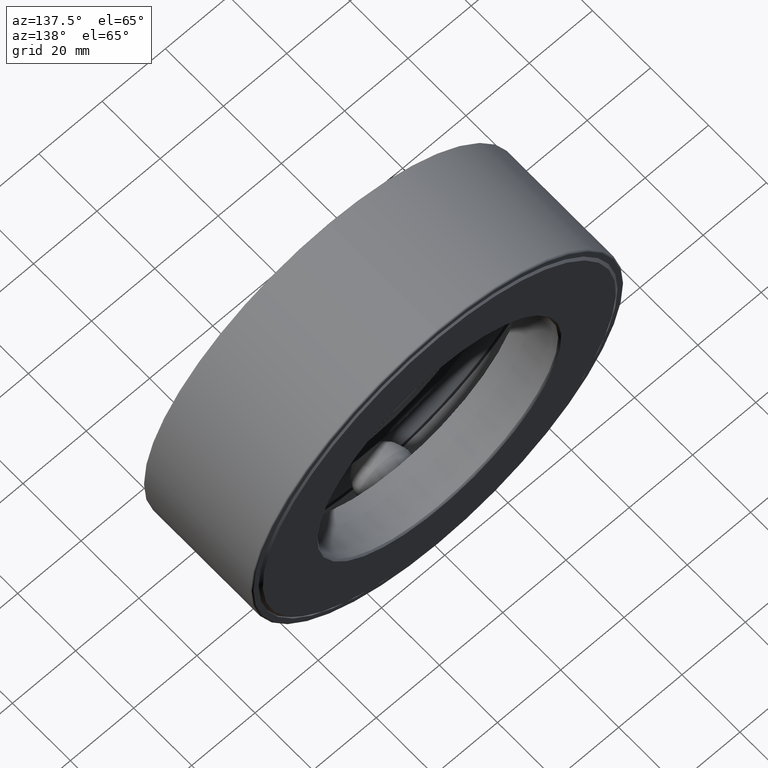
[diagram: clean part render]
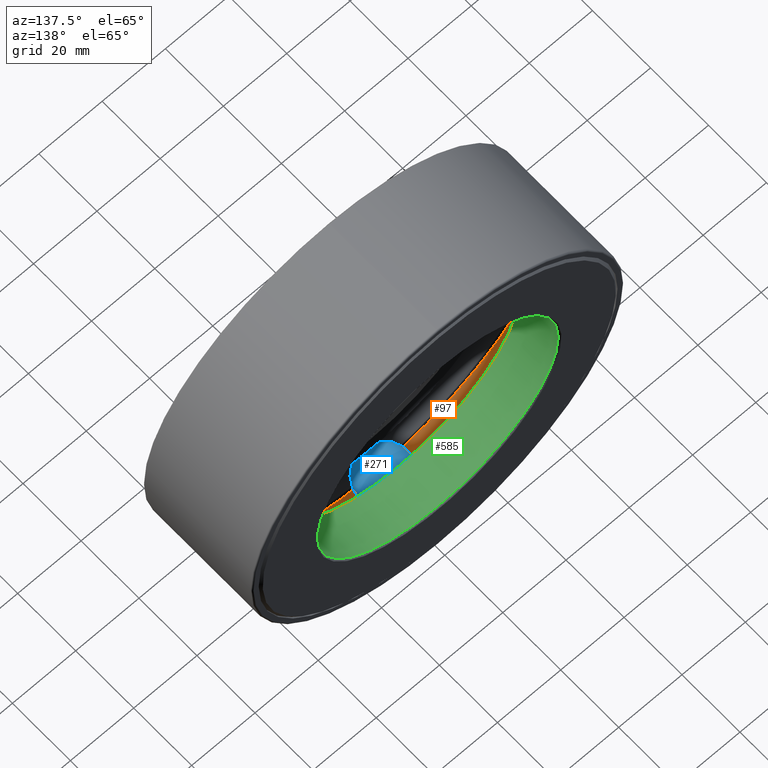
[diagram: same view with three faces highlighted in distinct colors, each labeled with its STEP entity id]
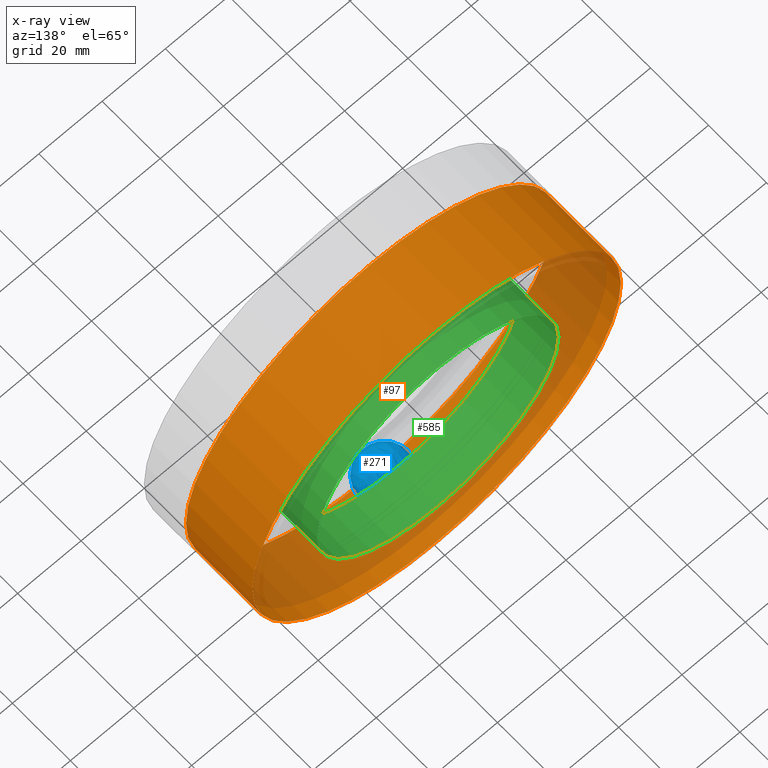
[diagram: x-ray of the same camera — body ghosted, the three highlighted faces saturated]
A machine part, auxiliary view with three faces highlighted in distinct colors.
The next image is the same camera in x-ray (body ghosted, the three faces saturated) — at least one of them is partly hidden behind the body in this view.
Their STEP definitions:

[orange] entity #97 — the highlighted cylindrical surface (bore or boss wall) has radius 58.2295 mm, axis along (-0, 1, -0).
#23 = DIRECTION ( 'NONE',  ( 0.0000000000000000000, 0.0000000000000000000, 1.000000000000000000 ) ) ;
#29 = EDGE_CURVE ( 'NONE', #243, #243, #111, .T. ) ;
#37 = ORIENTED_EDGE ( 'NONE', *, *, #29, .F. ) ;
#38 = AXIS2_PLACEMENT_3D ( 'NONE', #250, #335, #23 ) ;
#97 = ADVANCED_FACE ( 'NONE', ( #485, #544 ), #339, .F. ) ;
#111 = CIRCLE ( 'NONE', #38, 2.292499999999999500 ) ;
#134 = CARTESIAN_POINT ( 'NONE',  ( 0.0000000000000000000, 1.464999999999999900, 0.0000000000000000000 ) ) ;
#160 = CARTESIAN_POINT ( 'NONE',  ( 0.0000000000000000000, 0.0000000000000000000, 0.0000000000000000000 ) ) ;
#186 = DIRECTION ( 'NONE',  ( 0.0000000000000000000, 0.0000000000000000000, 1.000000000000000000 ) ) ;
#207 = EDGE_LOOP ( 'NONE', ( #37 ) ) ;
#223 = AXIS2_PLACEMENT_3D ( 'NONE', #134, #448, #186 ) ;
#241 = DIRECTION ( 'NONE',  ( 0.0000000000000000000, 0.0000000000000000000, 1.000000000000000000 ) ) ;
#243 = VERTEX_POINT ( 'NONE', #537 ) ;
#250 = CARTESIAN_POINT ( 'NONE',  ( 0.0000000000000000000, 0.5624999999999998900, 0.0000000000000000000 ) ) ;
#319 = AXIS2_PLACEMENT_3D ( 'NONE', #160, #566, #241 ) ;
#335 = DIRECTION ( 'NONE',  ( -0.0000000000000000000, 1.000000000000000000, -0.0000000000000000000 ) ) ;
#336 = EDGE_CURVE ( 'NONE', #381, #381, #345, .T. ) ;
#339 = CYLINDRICAL_SURFACE ( 'NONE', #319, 2.292499999999999500 ) ;
#345 = CIRCLE ( 'NONE', #223, 2.292499999999999500 ) ;
#381 = VERTEX_POINT ( 'NONE', #599 ) ;
#448 = DIRECTION ( 'NONE',  ( -0.0000000000000000000, 1.000000000000000000, -0.0000000000000000000 ) ) ;
#456 = EDGE_LOOP ( 'NONE', ( #552 ) ) ;
#485 = FACE_OUTER_BOUND ( 'NONE', #207, .T. ) ;
#537 = CARTESIAN_POINT ( 'NONE',  ( 0.0000000000000000000, 0.5624999999999998900, 2.292499999999999500 ) ) ;
#544 = FACE_OUTER_BOUND ( 'NONE', #456, .T. ) ;
#552 = ORIENTED_EDGE ( 'NONE', *, *, #336, .T. ) ;
#566 = DIRECTION ( 'NONE',  ( -0.0000000000000000000, 1.000000000000000000, -0.0000000000000000000 ) ) ;
#599 = CARTESIAN_POINT ( 'NONE',  ( 0.0000000000000000000, 1.464999999999999900, 2.292499999999999500 ) ) ;

[blue] entity #271 — the highlighted spherical surface has radius 7.9375 mm.
#71 = AXIS2_PLACEMENT_3D ( 'NONE', #256, #263, #536 ) ;
#256 = CARTESIAN_POINT ( 'NONE',  ( -2.064512915657944700E-014, 0.7499999999999998900, -1.970999999999999900 ) ) ;
#263 = DIRECTION ( 'NONE',  ( 1.000000000000000000, 0.0000000000000000000, -1.047444401652940000E-014 ) ) ;
#271 = ADVANCED_FACE ( 'NONE', ( ), #430, .T. ) ;
#430 = SPHERICAL_SURFACE ( 'NONE', #71, 0.3125000000000000000 ) ;
#536 = DIRECTION ( 'NONE',  ( 1.047444401652940000E-014, 0.0000000000000000000, 1.000000000000000000 ) ) ;

[green] entity #585 — the highlighted cylindrical surface (bore or boss wall) has radius 38.1 mm, axis along (-0, 1, -0).
#15 = FACE_OUTER_BOUND ( 'NONE', #413, .T. ) ;
#28 = AXIS2_PLACEMENT_3D ( 'NONE', #507, #366, #553 ) ;
#104 = VERTEX_POINT ( 'NONE', #169 ) ;
#107 = EDGE_LOOP ( 'NONE', ( #571 ) ) ;
#125 = CIRCLE ( 'NONE', #211, 1.500000000000000200 ) ;
#169 = CARTESIAN_POINT ( 'NONE',  ( 0.0000000000000000000, 1.479999999999999300, 1.500000000000000200 ) ) ;
#183 = DIRECTION ( 'NONE',  ( 0.0000000000000000000, 0.0000000000000000000, 1.000000000000000000 ) ) ;
#211 = AXIS2_PLACEMENT_3D ( 'NONE', #465, #606, #364 ) ;
#358 = VERTEX_POINT ( 'NONE', #446 ) ;
#364 = DIRECTION ( 'NONE',  ( 0.0000000000000000000, 0.0000000000000000000, 1.000000000000000000 ) ) ;
#366 = DIRECTION ( 'NONE',  ( -0.0000000000000000000, 1.000000000000000000, -0.0000000000000000000 ) ) ;
#413 = EDGE_LOOP ( 'NONE', ( #605 ) ) ;
#446 = CARTESIAN_POINT ( 'NONE',  ( 0.0000000000000000000, 0.9374999999999998900, 1.500000000000000200 ) ) ;
#449 = CARTESIAN_POINT ( 'NONE',  ( 0.0000000000000000000, 1.479999999999999300, 0.0000000000000000000 ) ) ;
#465 = CARTESIAN_POINT ( 'NONE',  ( 0.0000000000000000000, 0.9374999999999998900, 0.0000000000000000000 ) ) ;
#507 = CARTESIAN_POINT ( 'NONE',  ( 0.0000000000000000000, 0.0000000000000000000, 0.0000000000000000000 ) ) ;
#518 = CIRCLE ( 'NONE', #572, 1.500000000000000200 ) ;
#525 = EDGE_CURVE ( 'NONE', #358, #358, #125, .T. ) ;
#528 = FACE_OUTER_BOUND ( 'NONE', #107, .T. ) ;
#542 = CYLINDRICAL_SURFACE ( 'NONE', #28, 1.500000000000000200 ) ;
#553 = DIRECTION ( 'NONE',  ( 0.0000000000000000000, 0.0000000000000000000, 1.000000000000000000 ) ) ;
#571 = ORIENTED_EDGE ( 'NONE', *, *, #525, .F. ) ;
#572 = AXIS2_PLACEMENT_3D ( 'NONE', #449, #580, #183 ) ;
#580 = DIRECTION ( 'NONE',  ( -0.0000000000000000000, 1.000000000000000000, -0.0000000000000000000 ) ) ;
#585 = ADVANCED_FACE ( 'NONE', ( #15, #528 ), #542, .F. ) ;
#595 = EDGE_CURVE ( 'NONE', #104, #104, #518, .T. ) ;
#605 = ORIENTED_EDGE ( 'NONE', *, *, #595, .T. ) ;
#606 = DIRECTION ( 'NONE',  ( -0.0000000000000000000, 1.000000000000000000, -0.0000000000000000000 ) ) ;